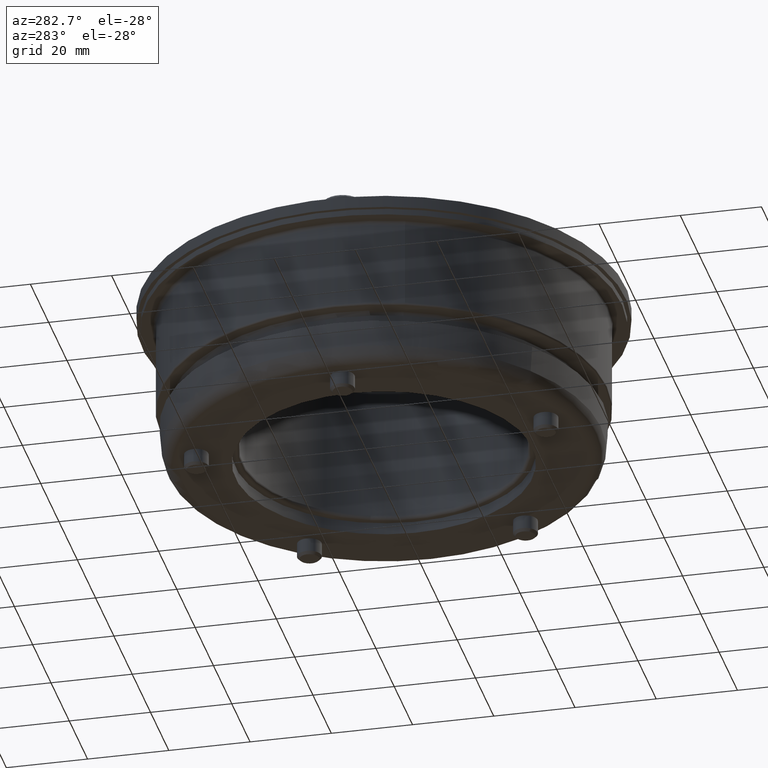
[diagram: clean part render]
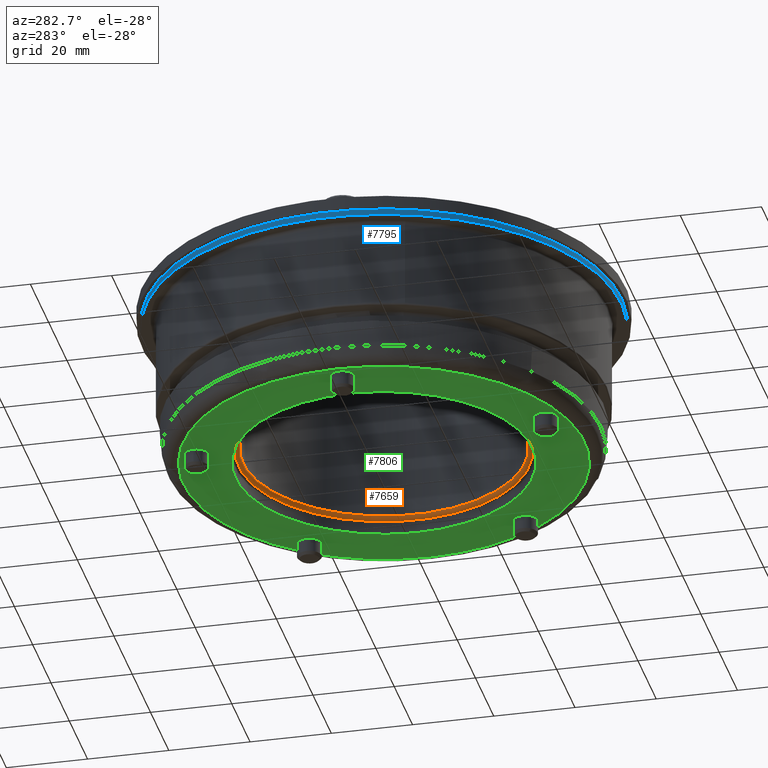
[diagram: same view with three faces highlighted in distinct colors, each labeled with its STEP entity id]
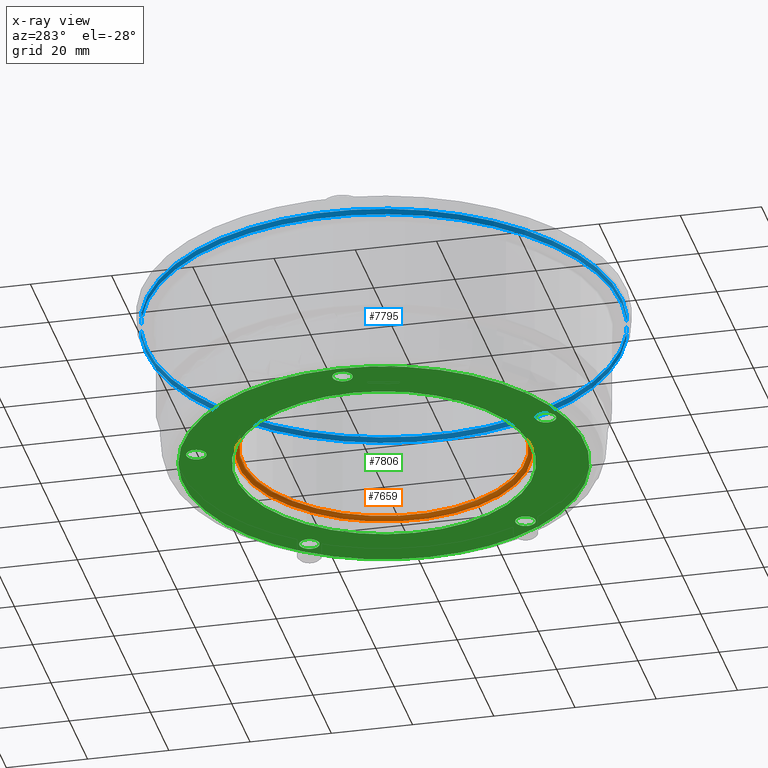
[diagram: x-ray of the same camera — body ghosted, the three highlighted faces saturated]
A machine part, auxiliary view with three faces highlighted in distinct colors.
The next image is the same camera in x-ray (body ghosted, the three faces saturated) — at least one of them is partly hidden behind the body in this view.
Their STEP definitions:

[orange] entity #7659 — the highlighted toroidal blend (fillet) surface has major radius 35.75 mm and minor (blend) radius 1 mm.
#167=TOROIDAL_SURFACE('',#8303,35.75,1.);
#366=CIRCLE('',#8304,35.75);
#367=CIRCLE('',#8305,1.);
#368=CIRCLE('',#8306,34.75);
#369=CIRCLE('',#8307,34.75);
#370=CIRCLE('',#8308,35.75);
#960=FACE_OUTER_BOUND('',#1377,.T.);
#1377=EDGE_LOOP('',(#5510,#5511,#5512,#5513,#5514,#5515));
#3266=VERTEX_POINT('',#11277);
#3267=VERTEX_POINT('',#11278);
#3268=VERTEX_POINT('',#11280);
#3269=VERTEX_POINT('',#11282);
#4138=EDGE_CURVE('',#3266,#3267,#366,.T.);
#4139=EDGE_CURVE('',#3267,#3268,#367,.T.);
#4140=EDGE_CURVE('',#3268,#3269,#368,.T.);
#4141=EDGE_CURVE('',#3269,#3268,#369,.T.);
#4142=EDGE_CURVE('',#3267,#3266,#370,.T.);
#5510=ORIENTED_EDGE('',*,*,#4138,.T.);
#5511=ORIENTED_EDGE('',*,*,#4139,.T.);
#5512=ORIENTED_EDGE('',*,*,#4140,.T.);
#5513=ORIENTED_EDGE('',*,*,#4141,.T.);
#5514=ORIENTED_EDGE('',*,*,#4139,.F.);
#5515=ORIENTED_EDGE('',*,*,#4142,.T.);
#7659=ADVANCED_FACE('',(#960),#167,.T.);
#8303=AXIS2_PLACEMENT_3D('',#11276,#9163,#9164);
#8304=AXIS2_PLACEMENT_3D('',#11279,#9165,#9166);
#8305=AXIS2_PLACEMENT_3D('',#11281,#9167,#9168);
#8306=AXIS2_PLACEMENT_3D('',#11283,#9169,#9170);
#8307=AXIS2_PLACEMENT_3D('',#11284,#9171,#9172);
#8308=AXIS2_PLACEMENT_3D('',#11285,#9173,#9174);
#9163=DIRECTION('center_axis',(0.,0.,1.));
#9164=DIRECTION('ref_axis',(1.,0.,0.));
#9165=DIRECTION('center_axis',(0.,0.,-1.));
#9166=DIRECTION('ref_axis',(-1.,0.,0.));
#9167=DIRECTION('center_axis',(1.22464679914735E-16,-1.,0.));
#9168=DIRECTION('ref_axis',(-1.,-1.22464679914735E-16,0.));
#9169=DIRECTION('center_axis',(0.,0.,1.));
#9170=DIRECTION('ref_axis',(-1.,0.,0.));
#9171=DIRECTION('center_axis',(0.,0.,1.));
#9172=DIRECTION('ref_axis',(-1.,0.,0.));
#9173=DIRECTION('center_axis',(0.,0.,-1.));
#9174=DIRECTION('ref_axis',(-1.,0.,0.));
#11276=CARTESIAN_POINT('Origin',(-5.55111512312578E-16,5.55111512312578E-16,
1.));
#11277=CARTESIAN_POINT('',(35.75,-3.82300079463921E-15,0.));
#11278=CARTESIAN_POINT('',(-35.75,-3.82300079463921E-15,0.));
#11279=CARTESIAN_POINT('Origin',(-5.55111512312578E-16,5.55111512312578E-16,
0.));
#11280=CARTESIAN_POINT('',(-34.75,-3.70053611472447E-15,1.));
#11281=CARTESIAN_POINT('Origin',(-35.75,-3.82300079463921E-15,1.));
#11282=CARTESIAN_POINT('',(34.75,4.81075913934963E-15,1.));
#11283=CARTESIAN_POINT('Origin',(-5.55111512312578E-16,5.55111512312578E-16,
1.));
#11284=CARTESIAN_POINT('Origin',(-5.55111512312578E-16,5.55111512312578E-16,
1.));
#11285=CARTESIAN_POINT('Origin',(-5.55111512312578E-16,5.55111512312578E-16,
0.));

[blue] entity #7795 — the highlighted cylindrical surface (bore or boss wall) has radius 58.5 mm, axis along (-0, 0, 1).
#200=CYLINDRICAL_SURFACE('',#8434,58.5);
#376=CIRCLE('',#8318,58.5);
#377=CIRCLE('',#8319,58.5);
#405=CIRCLE('',#8415,58.5);
#406=CIRCLE('',#8416,58.5);
#1096=FACE_OUTER_BOUND('',#1547,.T.);
#1547=EDGE_LOOP('',(#6255,#6256,#6257,#6258,#6259,#6260));
#2112=LINE('',#12674,#2757);
#2757=VECTOR('',#9632,58.5);
#3274=VERTEX_POINT('',#11300);
#3275=VERTEX_POINT('',#11301);
#3500=VERTEX_POINT('',#12642);
#3501=VERTEX_POINT('',#12643);
#4149=EDGE_CURVE('',#3274,#3275,#376,.T.);
#4150=EDGE_CURVE('',#3275,#3274,#377,.T.);
#4481=EDGE_CURVE('',#3500,#3501,#405,.T.);
#4482=EDGE_CURVE('',#3501,#3500,#406,.T.);
#4494=EDGE_CURVE('',#3275,#3501,#2112,.T.);
#6255=ORIENTED_EDGE('',*,*,#4149,.F.);
#6256=ORIENTED_EDGE('',*,*,#4150,.F.);
#6257=ORIENTED_EDGE('',*,*,#4494,.T.);
#6258=ORIENTED_EDGE('',*,*,#4482,.T.);
#6259=ORIENTED_EDGE('',*,*,#4481,.T.);
#6260=ORIENTED_EDGE('',*,*,#4494,.F.);
#7795=ADVANCED_FACE('',(#1096),#200,.T.);
#8318=AXIS2_PLACEMENT_3D('',#11302,#9194,#9195);
#8319=AXIS2_PLACEMENT_3D('',#11303,#9196,#9197);
#8415=AXIS2_PLACEMENT_3D('',#12644,#9587,#9588);
#8416=AXIS2_PLACEMENT_3D('',#12645,#9589,#9590);
#8434=AXIS2_PLACEMENT_3D('',#12673,#9630,#9631);
#9194=DIRECTION('center_axis',(0.,-1.83697019872103E-16,1.));
#9195=DIRECTION('ref_axis',(0.,-1.,-1.83697019872103E-16));
#9196=DIRECTION('center_axis',(0.,-1.83697019872103E-16,1.));
#9197=DIRECTION('ref_axis',(0.,-1.,-1.83697019872103E-16));
#9587=DIRECTION('center_axis',(0.,-1.83697019872103E-16,1.));
#9588=DIRECTION('ref_axis',(0.,-1.,-1.83697019872103E-16));
#9589=DIRECTION('center_axis',(0.,-1.83697019872103E-16,1.));
#9590=DIRECTION('ref_axis',(0.,-1.,-1.83697019872103E-16));
#9630=DIRECTION('center_axis',(0.,-1.83697019872103E-16,1.));
#9631=DIRECTION('ref_axis',(0.,-1.,-1.83697019872103E-16));
#9632=DIRECTION('',(0.,1.83697019872103E-16,-1.));
#11300=CARTESIAN_POINT('',(0.,-58.5,35.));
#11301=CARTESIAN_POINT('',(-7.16418377501202E-15,58.5,35.));
#11302=CARTESIAN_POINT('Origin',(0.,-6.42939569552361E-15,35.));
#11303=CARTESIAN_POINT('Origin',(0.,-6.42939569552361E-15,35.));
#12642=CARTESIAN_POINT('',(0.,-58.5,33.5));
#12643=CARTESIAN_POINT('',(-7.16418377501202E-15,58.5,33.5));
#12644=CARTESIAN_POINT('Origin',(0.,-6.15385016571545E-15,33.5));
#12645=CARTESIAN_POINT('Origin',(0.,-6.15385016571545E-15,33.5));
#12673=CARTESIAN_POINT('Origin',(0.,-6.29162293061953E-15,34.25));
#12674=CARTESIAN_POINT('',(-7.16418377501202E-15,58.5,34.25));

[green] entity #7806 — the highlighted planar face has unit normal (-0, 0, -1).
#110=FACE_BOUND('',#1565,.T.);
#111=FACE_BOUND('',#1566,.T.);
#112=FACE_BOUND('',#1567,.T.);
#113=FACE_BOUND('',#1568,.T.);
#114=FACE_BOUND('',#1569,.T.);
#115=FACE_BOUND('',#1570,.T.);
#415=CIRCLE('',#8440,2.4585);
#418=CIRCLE('',#8444,2.4585);
#421=CIRCLE('',#8448,2.4585);
#424=CIRCLE('',#8452,2.4585);
#427=CIRCLE('',#8456,2.4585);
#440=CIRCLE('',#8473,49.4096753039303);
#441=CIRCLE('',#8474,49.4096753039303);
#444=CIRCLE('',#8478,36.55);
#445=CIRCLE('',#8479,36.55);
#1107=FACE_OUTER_BOUND('',#1564,.T.);
#1564=EDGE_LOOP('',(#6326,#6327));
#1565=EDGE_LOOP('',(#6328));
#1566=EDGE_LOOP('',(#6329));
#1567=EDGE_LOOP('',(#6330));
#1568=EDGE_LOOP('',(#6331));
#1569=EDGE_LOOP('',(#6332));
#1570=EDGE_LOOP('',(#6333,#6334));
#3509=VERTEX_POINT('',#12682);
#3512=VERTEX_POINT('',#12690);
#3515=VERTEX_POINT('',#12698);
#3518=VERTEX_POINT('',#12706);
#3521=VERTEX_POINT('',#12714);
#3533=VERTEX_POINT('',#12744);
#3534=VERTEX_POINT('',#12746);
#3536=VERTEX_POINT('',#12753);
#3537=VERTEX_POINT('',#12754);
#4498=EDGE_CURVE('',#3509,#3509,#415,.T.);
#4502=EDGE_CURVE('',#3512,#3512,#418,.T.);
#4506=EDGE_CURVE('',#3515,#3515,#421,.T.);
#4510=EDGE_CURVE('',#3518,#3518,#424,.T.);
#4514=EDGE_CURVE('',#3521,#3521,#427,.T.);
#4528=EDGE_CURVE('',#3533,#3534,#440,.T.);
#4529=EDGE_CURVE('',#3534,#3533,#441,.T.);
#4532=EDGE_CURVE('',#3536,#3537,#444,.T.);
#4533=EDGE_CURVE('',#3537,#3536,#445,.T.);
#6326=ORIENTED_EDGE('',*,*,#4529,.F.);
#6327=ORIENTED_EDGE('',*,*,#4528,.F.);
#6328=ORIENTED_EDGE('',*,*,#4498,.T.);
#6329=ORIENTED_EDGE('',*,*,#4502,.T.);
#6330=ORIENTED_EDGE('',*,*,#4506,.T.);
#6331=ORIENTED_EDGE('',*,*,#4510,.T.);
#6332=ORIENTED_EDGE('',*,*,#4514,.T.);
#6333=ORIENTED_EDGE('',*,*,#4532,.T.);
#6334=ORIENTED_EDGE('',*,*,#4533,.T.);
#7473=PLANE('',#8477);
#7806=ADVANCED_FACE('',(#1107,#110,#111,#112,#113,#114,#115),#7473,.T.);
#8440=AXIS2_PLACEMENT_3D('',#12684,#9644,#9645);
#8444=AXIS2_PLACEMENT_3D('',#12692,#9653,#9654);
#8448=AXIS2_PLACEMENT_3D('',#12700,#9662,#9663);
#8452=AXIS2_PLACEMENT_3D('',#12708,#9671,#9672);
#8456=AXIS2_PLACEMENT_3D('',#12716,#9680,#9681);
#8473=AXIS2_PLACEMENT_3D('',#12747,#9715,#9716);
#8474=AXIS2_PLACEMENT_3D('',#12748,#9717,#9718);
#8477=AXIS2_PLACEMENT_3D('',#12752,#9723,#9724);
#8478=AXIS2_PLACEMENT_3D('',#12755,#9725,#9726);
#8479=AXIS2_PLACEMENT_3D('',#12756,#9727,#9728);
#9644=DIRECTION('center_axis',(0.,1.,0.));
#9645=DIRECTION('ref_axis',(1.,0.,0.));
#9653=DIRECTION('center_axis',(0.,1.,0.));
#9654=DIRECTION('ref_axis',(1.,0.,0.));
#9662=DIRECTION('center_axis',(0.,1.,0.));
#9663=DIRECTION('ref_axis',(1.,0.,0.));
#9671=DIRECTION('center_axis',(0.,1.,0.));
#9672=DIRECTION('ref_axis',(1.,0.,0.));
#9680=DIRECTION('center_axis',(0.,1.,0.));
#9681=DIRECTION('ref_axis',(1.,0.,0.));
#9715=DIRECTION('center_axis',(0.,1.,0.));
#9716=DIRECTION('ref_axis',(1.,0.,1.22464679914735E-16));
#9717=DIRECTION('center_axis',(0.,1.,0.));
#9718=DIRECTION('ref_axis',(1.,0.,1.22464679914735E-16));
#9723=DIRECTION('center_axis',(0.,-1.,0.));
#9724=DIRECTION('ref_axis',(0.,0.,-1.));
#9725=DIRECTION('center_axis',(0.,1.,0.));
#9726=DIRECTION('ref_axis',(-1.,0.,0.));
#9727=DIRECTION('center_axis',(0.,1.,0.));
#9728=DIRECTION('ref_axis',(-1.,0.,0.));
#12682=CARTESIAN_POINT('',(24.1388070778145,0.,36.6080012594028));
#12684=CARTESIAN_POINT('Origin',(26.5973070778145,0.,36.6080012594028));
#12690=CARTESIAN_POINT('',(-45.4938166867422,0.,-13.9829902979228));
#12692=CARTESIAN_POINT('Origin',(-43.0353166867422,0.,-13.9829902979228));
#12698=CARTESIAN_POINT('',(-2.45853017437975,0.,-45.2499999999899));
#12700=CARTESIAN_POINT('Origin',(-3.01743797498557E-5,0.,-45.2499999999899));
#12706=CARTESIAN_POINT('',(-29.0557582546425,0.,36.6080367315136));
#12708=CARTESIAN_POINT('Origin',(-26.5972582546425,0.,36.6080367315136));
#12714=CARTESIAN_POINT('',(40.57679803795,0.,-13.9830476930037));
#12716=CARTESIAN_POINT('Origin',(43.03529803795,0.,-13.9830476930037));
#12744=CARTESIAN_POINT('',(-6.05094007078683E-15,-8.88178419700125E-15,
-49.4096753039303));
#12746=CARTESIAN_POINT('',(-49.4096753039303,-8.88178419700125E-15,0.));
#12747=CARTESIAN_POINT('Origin',(0.,-8.88178419700125E-15,0.));
#12748=CARTESIAN_POINT('Origin',(0.,-8.88178419700125E-15,0.));
#12752=CARTESIAN_POINT('Origin',(-51.575,-8.64899481867213E-15,0.));
#12753=CARTESIAN_POINT('',(-36.55,-6.71412607632536E-15,0.));
#12754=CARTESIAN_POINT('',(36.55,-6.66133814775094E-15,-4.47608405088358E-15));
#12755=CARTESIAN_POINT('Origin',(0.,-6.66133814775094E-15,0.));
#12756=CARTESIAN_POINT('Origin',(0.,-6.66133814775094E-15,0.));